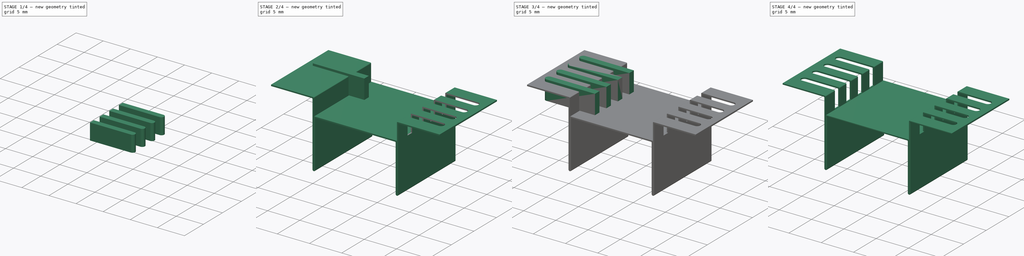
[diagram: build sequence overview — one tinted view per stage of 4, left to right]
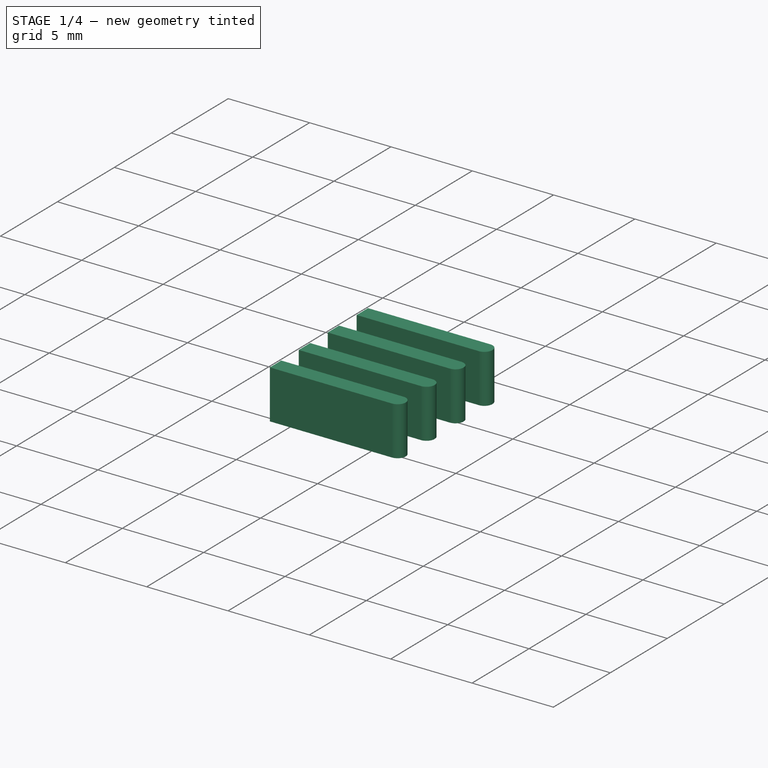
[diagram: stage 1 of 4 — iso view after this stage's code; geometry added in this stage tinted green]
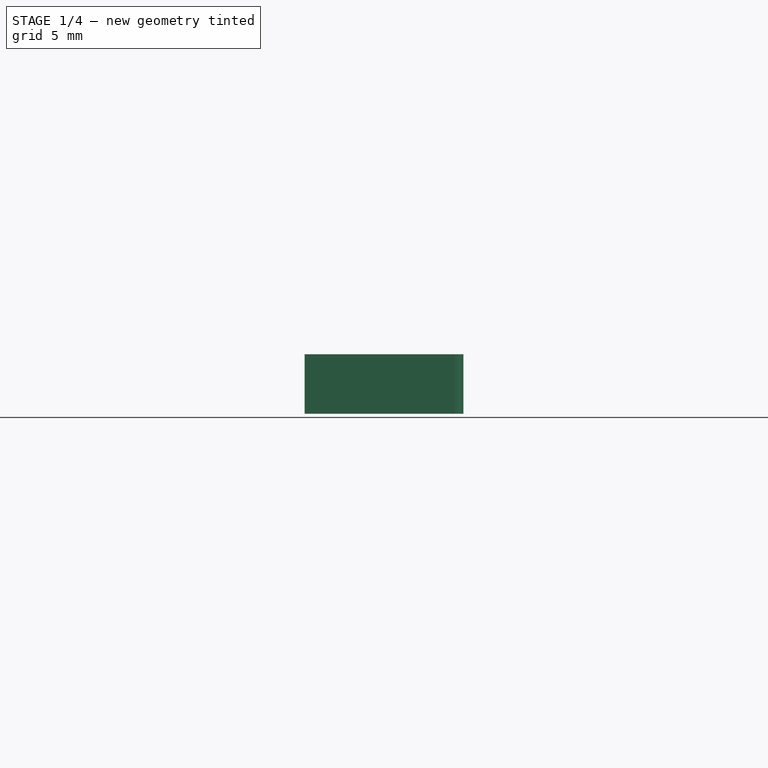
[diagram: stage 1 of 4 — front view after this stage's code; geometry added in this stage tinted green]
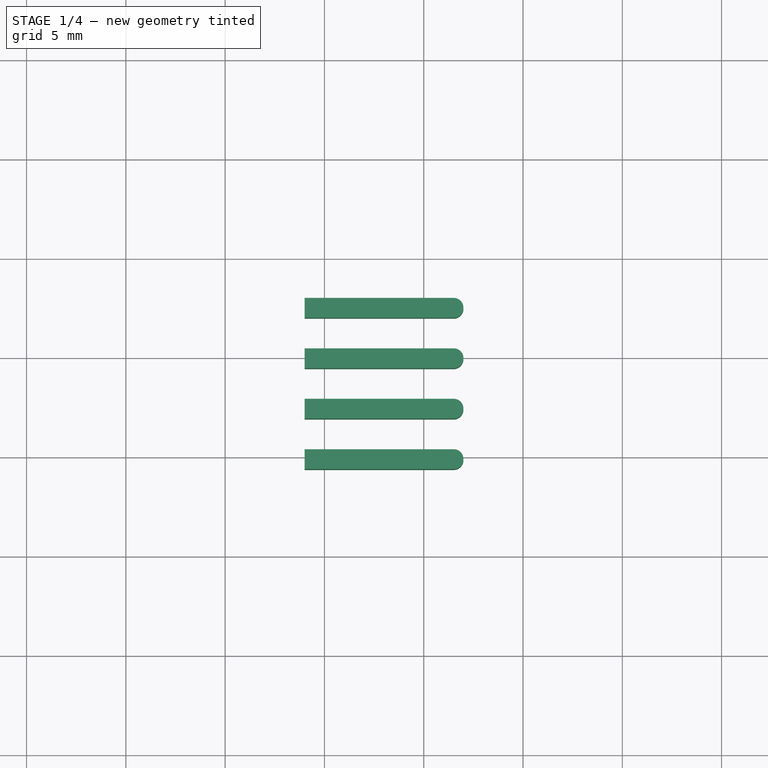
[diagram: stage 1 of 4 — top view after this stage's code; geometry added in this stage tinted green]
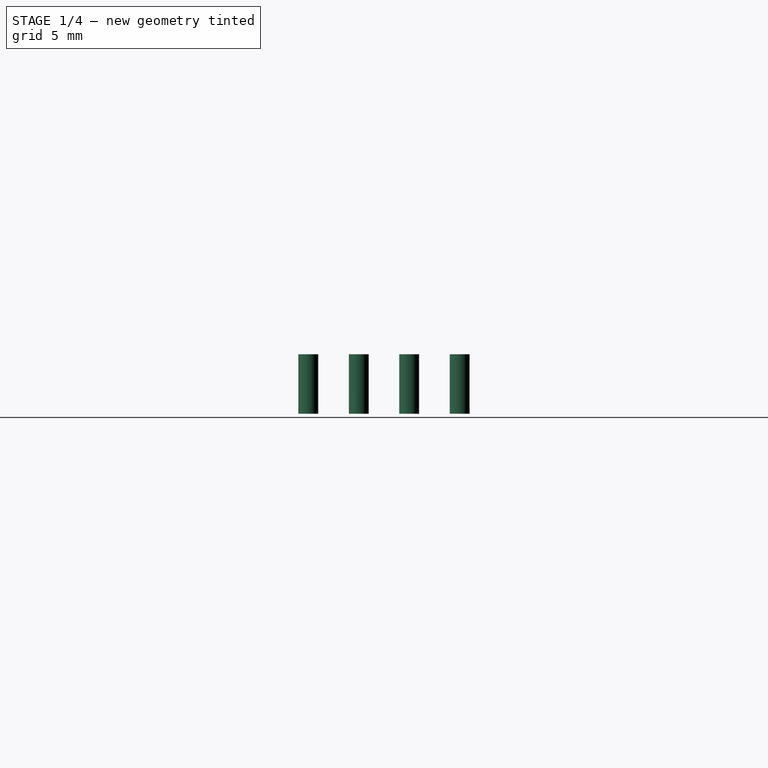
[diagram: stage 1 of 4 — right view after this stage's code; geometry added in this stage tinted green]
FCSTD DOCUMENT  (FreeCAD 0.17R11223 (Git))
Label: Heatsink_AAVID_573300D00010G_TO-263_05
License: All rights reserved
LicenseURL: http://en.wikipedia.org/wiki/All_rights_reserved
objects: Part::Fillet×7, Part::Box×2, Part::FeaturePython×2, Part::Cut×2, Sketcher::SketchObject×1, PartDesign::Pad×1, PartDesign::Body×1
note: 17 computed .brp shape members not serialized (recipe doc carries the construction recipe); baked Part::Feature solids carry a one-line shape summary decoded from their .brp

FEATURE [PartDesign::Body] Body
  Group = -> [Sketch,Pad]
  Origin = -> BodyOrigin
  Tip = -> Pad
FEATURE [Part::Box] Box  label="Kub"
  AttacherType = Attacher::AttachEngine3D
  Height = 3
  Length = 8
  Placement = pos=(4,-3,7.7) rot=(0,0,1;0rad)
  Width = 1
FEATURE [Part::Fillet] Fillet
  Base = -> Box
  Edges = 1 edges r=0.49: [Edge7]
FEATURE [Part::Fillet] Fillet001
  Base = -> Fillet
  Edges = 1 edges r=0.49: [Edge3]
FEATURE [Part::FeaturePython] Array  # Draft array (typed FeaturePython)
  Angle = 360
  ArrayType = 0
  Axis = (0,0,1)
  Base = -> Fillet001
  Center = (0,0,0)
  Fuse = false
  IntervalAxis = (0,0,0)
  IntervalX = (1,0,0)
  IntervalY = (0,-2.54,0)
  IntervalZ = (0,0,0)
  NumberPolar = 1
  NumberX = 1
  NumberY = 4
  NumberZ = 1
  Placement = pos=(0,0,0.01) rot=(0,0,1;0rad)
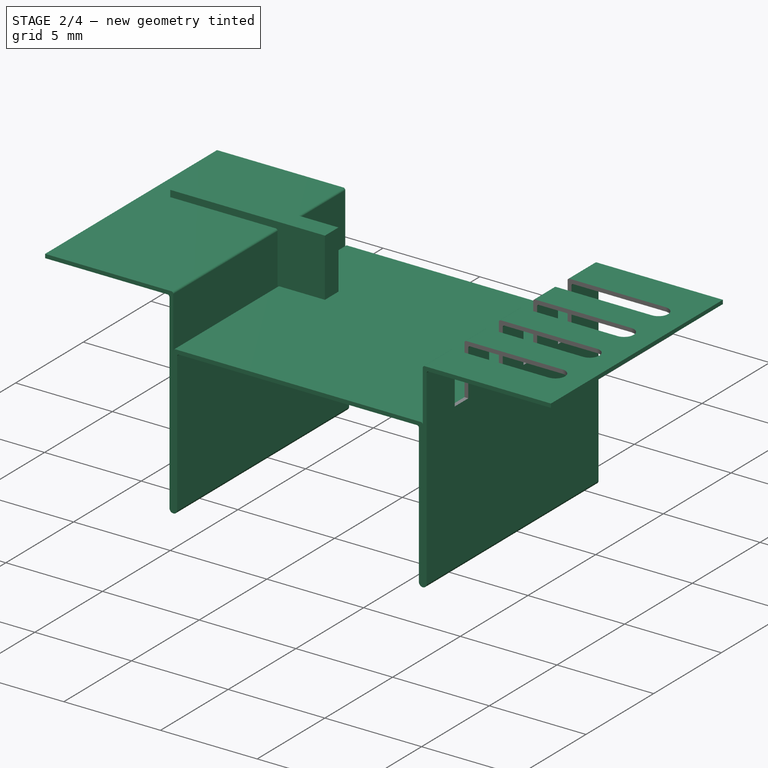
[diagram: stage 2 of 4 — iso view after this stage's code; geometry added in this stage tinted green]
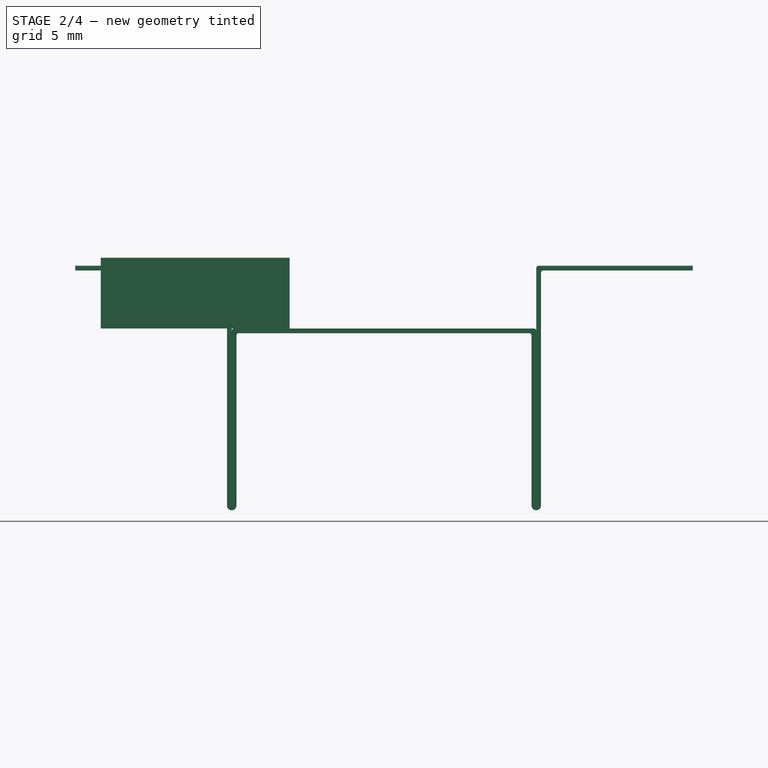
[diagram: stage 2 of 4 — front view after this stage's code; geometry added in this stage tinted green]
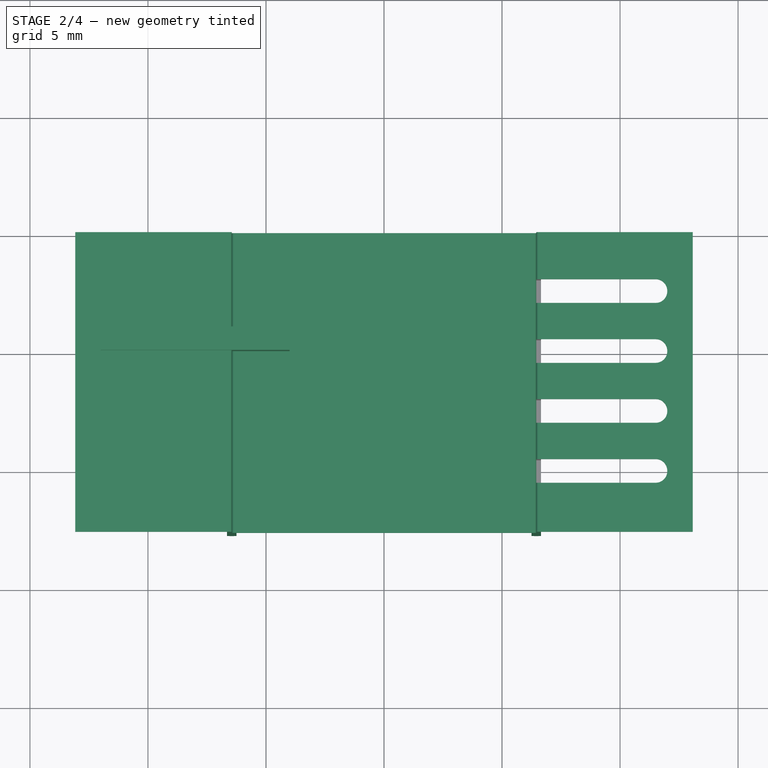
[diagram: stage 2 of 4 — top view after this stage's code; geometry added in this stage tinted green]
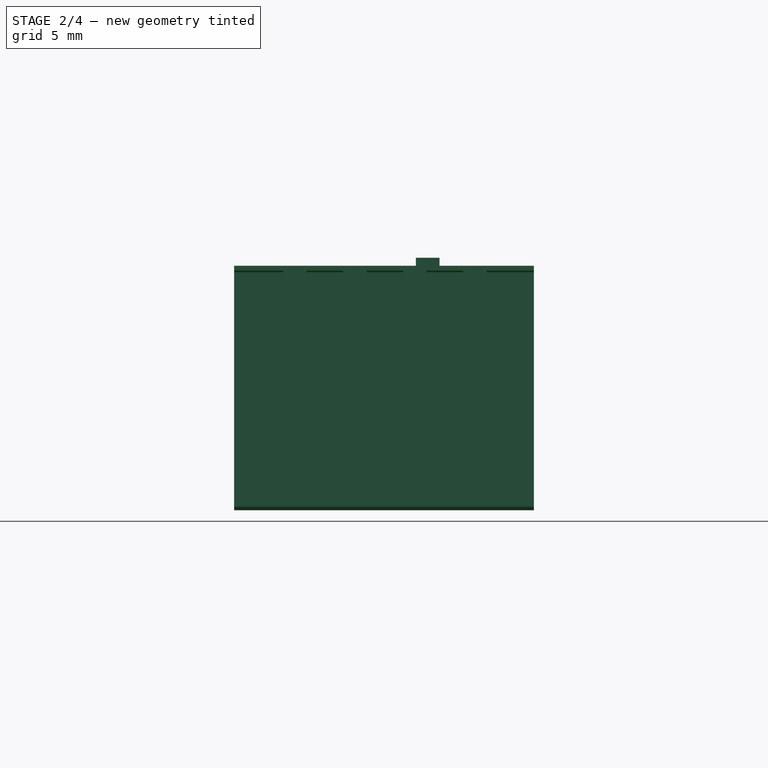
[diagram: stage 2 of 4 — right view after this stage's code; geometry added in this stage tinted green]
FEATURE [Sketcher::SketchObject] Sketch
  MapMode = 5
  Placement = pos=(0,0,0) rot=(1,0,0;1.5708rad)
  Support = -> [XZ_Plane]
  sketch-geometry (24):
    g0: LineSegment StartX=-13.08 StartY=10.36 StartZ=0 EndX=-13.08 EndY=10.16 EndZ=0
    g1: LineSegment StartX=-13.08 StartY=10.16 StartZ=0 EndX=-6.75 EndY=10.16 EndZ=0
    g2: ArcOfCircle CenterX=-6.75 CenterY=10.06 CenterZ=0 NormalX=0 NormalY=0 NormalZ=1 Radius=0.1 StartAngle=0 EndAngle=1.5708
    g3: LineSegment StartX=-6.65 StartY=10.06 StartZ=0 EndX=-6.65 EndY=0.2 EndZ=0
    g4: ArcOfCircle CenterX=-6.45 CenterY=0.2 CenterZ=0 NormalX=0 NormalY=0 NormalZ=1 Radius=0.2 StartAngle=3.14159 EndAngle=6.28319
    g5: LineSegment StartX=-6.25 StartY=0.2 StartZ=0 EndX=-6.25 EndY=7.4 EndZ=0
    g6: ArcOfCircle CenterX=-6.15 CenterY=7.4 CenterZ=0 NormalX=0 NormalY=0 NormalZ=1 Radius=0.1 StartAngle=1.5708 EndAngle=3.14159
    g7: LineSegment StartX=-6.15 StartY=7.5 StartZ=0 EndX=6.15 EndY=7.5 EndZ=0
    g8: ArcOfCircle CenterX=6.15 CenterY=7.4 CenterZ=0 NormalX=0 NormalY=0 NormalZ=1 Radius=0.1 StartAngle=0 EndAngle=1.5708
    g9: LineSegment StartX=6.25 StartY=7.4 StartZ=0 EndX=6.25 EndY=0.2 EndZ=0
    g10: ArcOfCircle CenterX=6.45 CenterY=0.2 CenterZ=0 NormalX=0 NormalY=0 NormalZ=1 Radius=0.2 StartAngle=3.14159 EndAngle=6.28319
    g11: LineSegment StartX=6.65 StartY=0.2 StartZ=0 EndX=6.65 EndY=10.06 EndZ=0
    g12: ArcOfCircle CenterX=6.75 CenterY=10.06 CenterZ=0 NormalX=0 NormalY=0 NormalZ=1 Radius=0.1 StartAngle=1.5708 EndAngle=3.14159
    g13: LineSegment StartX=6.75 StartY=10.16 StartZ=0 EndX=13.08 EndY=10.16 EndZ=0
    g14: LineSegment StartX=13.08 StartY=10.16 StartZ=0 EndX=13.08 EndY=10.36 EndZ=0
    g15: LineSegment StartX=13.08 StartY=10.36 StartZ=0 EndX=6.55 EndY=10.36 EndZ=0
    g16: ArcOfCircle CenterX=6.55 CenterY=10.26 CenterZ=0 NormalX=0 NormalY=0 NormalZ=1 Radius=0.1 StartAngle=1.5708 EndAngle=3.14159
    g17: LineSegment StartX=-6.35 StartY=7.7 StartZ=0 EndX=6.35 EndY=7.7 EndZ=0
    g18: ArcOfCircle CenterX=6.35 CenterY=7.6 CenterZ=0 NormalX=0 NormalY=0 NormalZ=1 Radius=0.1 StartAngle=0 EndAngle=1.5708
    g19: LineSegment StartX=6.45 StartY=7.6 StartZ=0 EndX=6.45 EndY=10.26 EndZ=0
    g20: LineSegment StartX=-13.08 StartY=10.36 StartZ=0 EndX=-6.55 EndY=10.36 EndZ=0
    g21: ArcOfCircle CenterX=-6.55 CenterY=10.26 CenterZ=0 NormalX=0 NormalY=0 NormalZ=1 Radius=0.1 StartAngle=0.001 EndAngle=1.5708
    g22: LineSegment StartX=-6.45 StartY=10.2601 StartZ=0 EndX=-6.45 EndY=7.6 EndZ=0
    g23: ArcOfCircle CenterX=-6.35 CenterY=7.6 CenterZ=0 NormalX=0 NormalY=0 NormalZ=1 Radius=0.1 StartAngle=1.5708 EndAngle=3.14159
  constraints (82):
    c: Vertical(g0)
    c: Coincident(g1,g0)
    c: Horizontal(g1)
    c: Coincident(g2,g1)
    c: Coincident(g3,g2)
    c: Vertical(g3)
    c: Coincident(g4,g3)
    c: Coincident(g5,g4)
    c: Vertical(g5)
    c: Coincident(g6,g5)
    c: Coincident(g7,g6)
    c: Horizontal(g7)
    c: Coincident(g8,g7)
    c: Coincident(g9,g8)
    c: Vertical(g9)
    c: Coincident(g10,g9)
    c: Coincident(g11,g10)
    c: Vertical(g11)
    c: Coincident(g12,g11)
    c: Coincident(g13,g12)
    c: Horizontal(g13)
    c: Coincident(g14,g13)
    c: Coincident(g15,g14)
    c: Horizontal(g15)
    c: Coincident(g16,g15)
    c: Horizontal(g17)
    c: Coincident(g18,g17)
    c: Coincident(g19,g16)
    c: Coincident(g20,g0)
    c: Horizontal(g20)
    c: Coincident(g21,g20)
    c: Coincident(g22,g21)
    c: Vertical(g22)
    c: Coincident(g23,g17)
    c: Radius(g4) = 0.2
    c: Radius(g10) = 0.2
    c: DistanceY(g-1,g4) = 0.2
    c: DistanceY(g-1,g10) = 0.2
    c: DistanceX(g4,g-1) = 6.45
    c: DistanceY(g-1,g6) = 7.5
    c: DistanceY(g2,g2) = 0
    c: DistanceX(g1,g2) = 0
    c: Radius(g2) = 0.1
    c: Radius(g6) = 0.1
    c: DistanceY(g5,g6) = 0
    c: DistanceX(g6,g6) = 0
    c: DistanceX(g3,g4) = 0.4
    c: DistanceY(g-1,g0) = 10.16
    c: DistanceY(g0,g0) = 0.2
    c: DistanceX(g9,g10) = 0.4
    c: DistanceX(g7,g8) = 0
    c: Radius(g8) = 0.1
    c: DistanceY(g8,g8) = 0
    c: DistanceX(g-1,g10) = 6.45
    c: Radius(g21) = 0.1
    c: DistanceX(g21,g20) = 0
    c: DistanceY(g21,g21) = 0.0001
    c: DistanceX(g2,g21) = 0.2
    c: DistanceX(g17,g23) = 0
    c: Radius(g23) = 0.1
    c: DistanceY(g6,g17) = 0.2
    c: DistanceX(g23,g5) = 0.2
    c: DistanceY(g23,g22) = 0
    c: Radius(g18) = 0.1
    c: DistanceX(g8,g18) = 0.2
    c: DistanceX(g17,g18) = 0
    c: DistanceY(g18,g18) = 0
    c: DistanceX(g18,g19) = 0
    c: DistanceY(g18,g19) = 0
    c: DistanceY(g14,g14) = 0.2
    c: DistanceX(g13,g14) = 0
    c: DistanceY(g-1,g13) = 10.16
    c: Radius(g12) = 0.1
    c: Radius(g16) = 0.1
    c: DistanceX(g12,g12) = 0
    c: DistanceY(g11,g12) = 0
    c: DistanceX(g16,g15) = 0
    c: DistanceY(g16,g16) = 0
    c: DistanceX(g0,g14) = 26.16
    c: DistanceX(g0,g-1) = 13.08
    c: DistanceX(g16,g11) = 0.2
    c: DistanceY(g23,g22) = 0
FEATURE [PartDesign::Pad] Pad
  Length = 12.7
  Length2 = 100
  Placement = pos=(0,0,0) rot=(1,0,0;1.5708rad)
  Profile = -> Sketch
  Type = 0
FEATURE [Part::Box] Box001  label="Kub001"
  AttacherType = Attacher::AttachEngine3D
  Height = 3
  Length = 8
  Placement = pos=(-12,-5,7.7) rot=(0,0,1;0rad)
  Width = 1
FEATURE [Part::Cut] Cut
  Base = -> Body
  Tool = -> Array
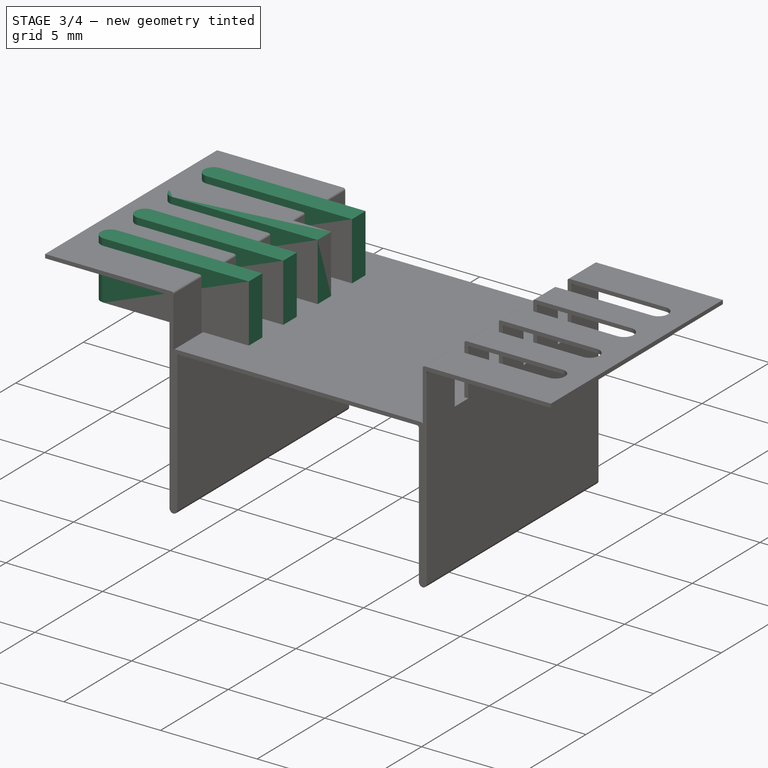
[diagram: stage 3 of 4 — iso view after this stage's code; geometry added in this stage tinted green]
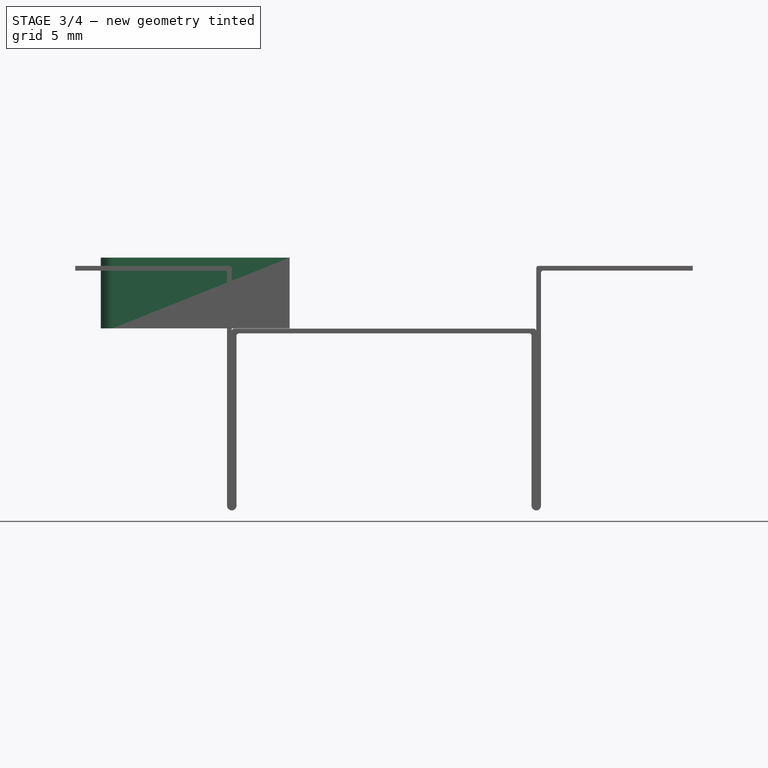
[diagram: stage 3 of 4 — front view after this stage's code; geometry added in this stage tinted green]
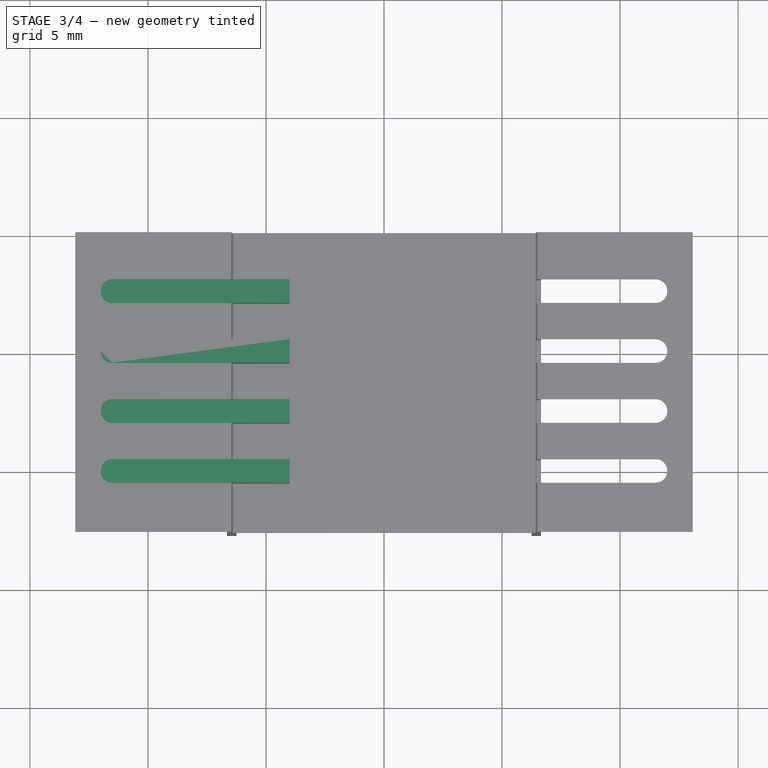
[diagram: stage 3 of 4 — top view after this stage's code; geometry added in this stage tinted green]
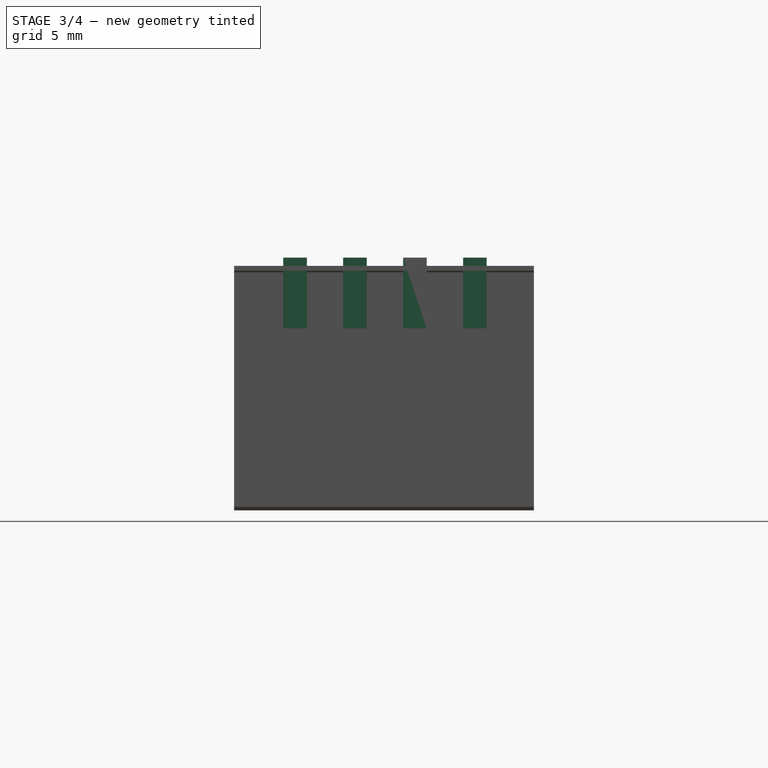
[diagram: stage 3 of 4 — right view after this stage's code; geometry added in this stage tinted green]
FEATURE [Part::Fillet] Fillet002
  Base = -> Box001
  Edges = 1 edges r=0.49: [Edge3]
FEATURE [Part::Fillet] Fillet003
  Base = -> Fillet002
  Edges = 1 edges r=0.49: [Edge3]
  Placement = pos=(0,2,0) rot=(0,0,1;0rad)
FEATURE [Part::FeaturePython] Array001  # Draft array (typed FeaturePython)
  Angle = 360
  ArrayType = 0
  Axis = (0,0,1)
  Base = -> Fillet003
  Center = (0,0,0)
  Fuse = false
  IntervalAxis = (0,0,0)
  IntervalX = (1,0,0)
  IntervalY = (0,-2.54,0)
  IntervalZ = (0,0,0)
  NumberPolar = 1
  NumberX = 1
  NumberY = 4
  NumberZ = 1
  Placement = pos=(0,0,0.01) rot=(0,0,1;0rad)
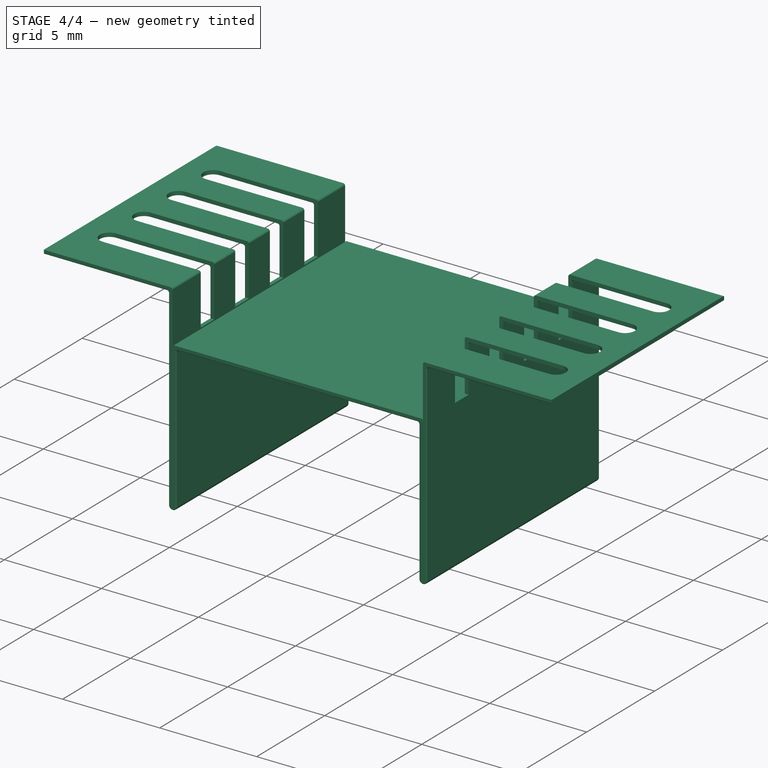
[diagram: stage 4 of 4 — iso view after this stage's code; geometry added in this stage tinted green]
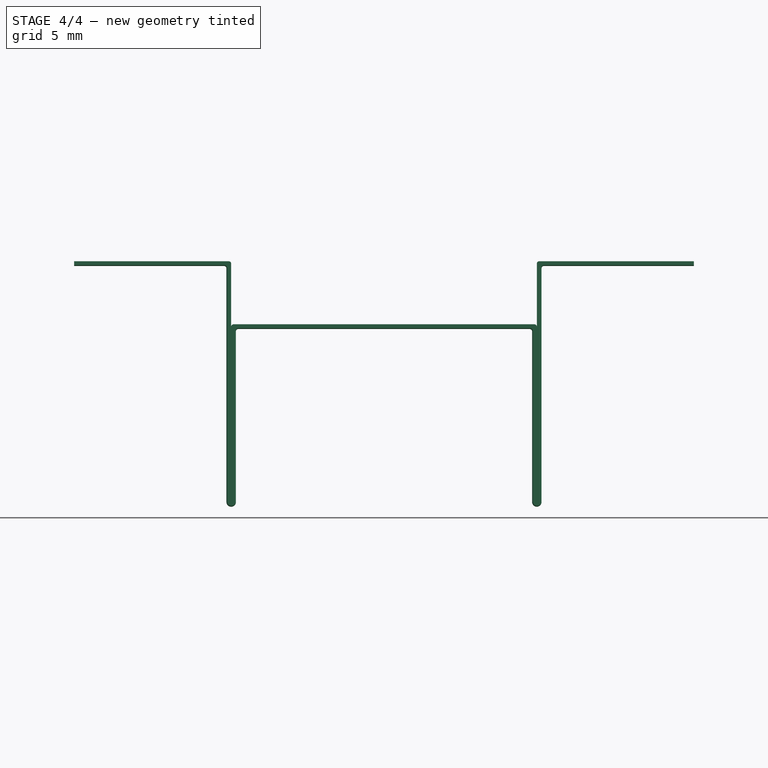
[diagram: stage 4 of 4 — front view after this stage's code; geometry added in this stage tinted green]
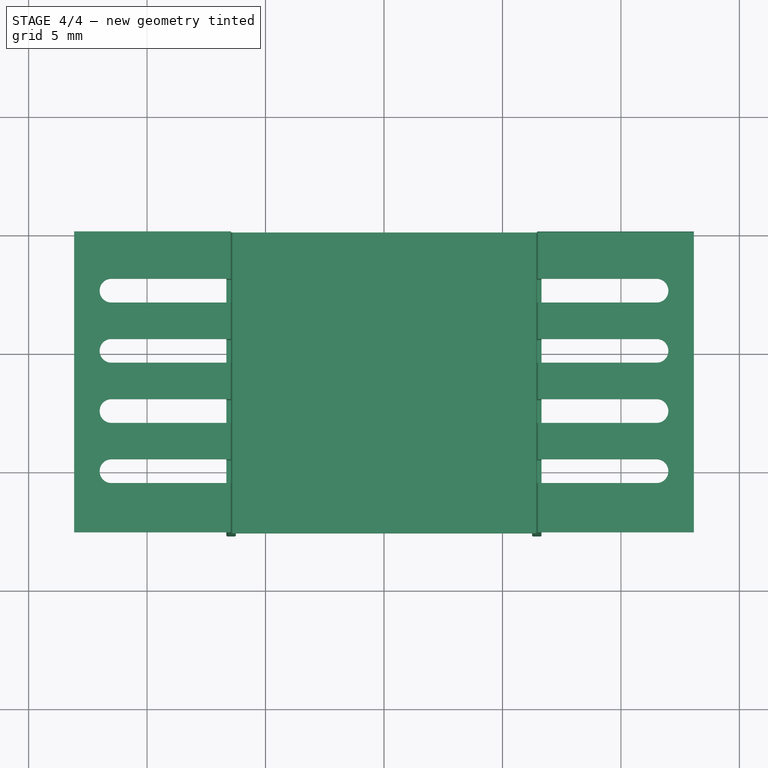
[diagram: stage 4 of 4 — top view after this stage's code; geometry added in this stage tinted green]
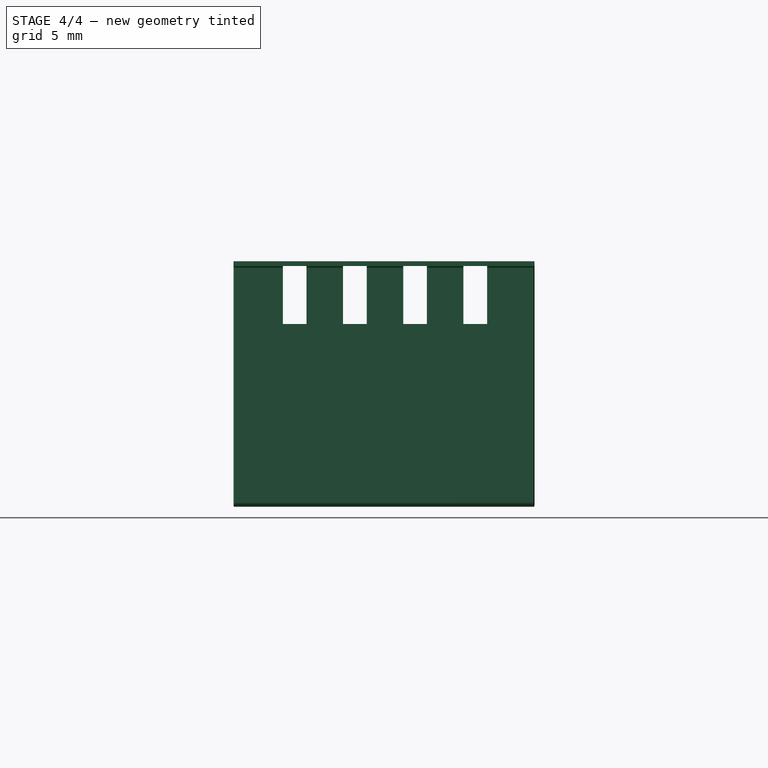
[diagram: stage 4 of 4 — right view after this stage's code; geometry added in this stage tinted green]
FEATURE [Part::Cut] Cut001
  Base = -> Cut
  Tool = -> Array001
FEATURE [Part::Fillet] Fillet004
  Base = -> Cut001
  Edges = 1 edges r=0.05: [Edge60]
FEATURE [Part::Fillet] Fillet005
  Base = -> Fillet004
  Edges = 1 edges r=0.05: [Edge73]
FEATURE [Part::Fillet] Fillet006
  Base = -> Fillet005
  Edges = 1 edges r=0.05: [Edge137]
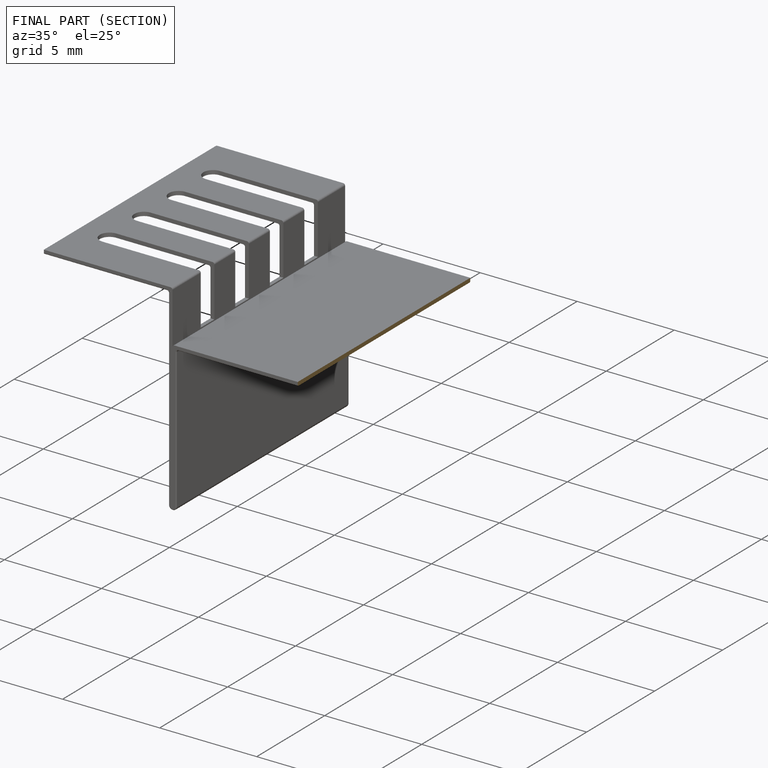
[diagram: finished part — half-section view (interior)]
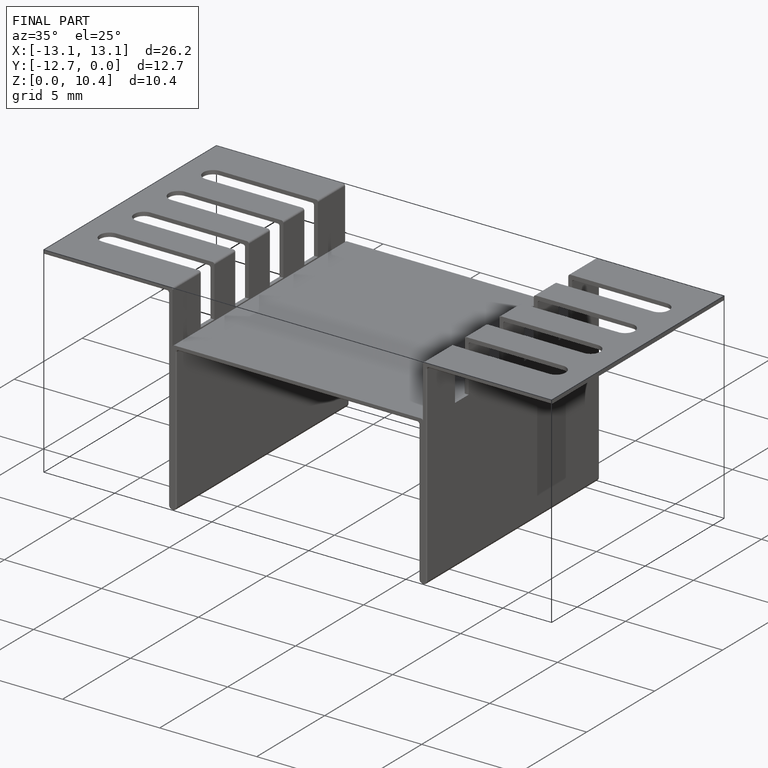
[diagram: finished part — iso view with bounding-box wireframe]
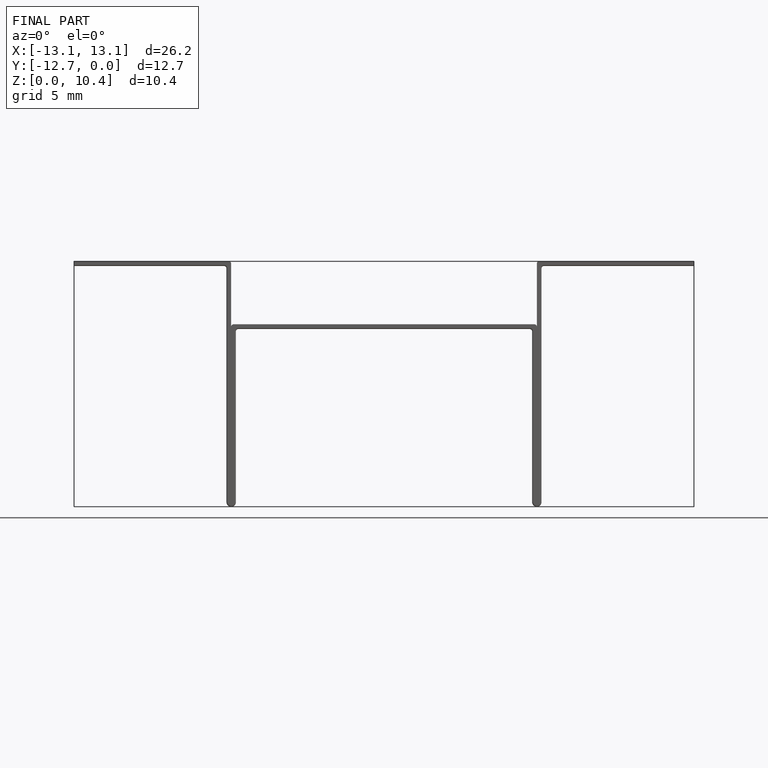
[diagram: finished part — front view with bounding-box wireframe]
